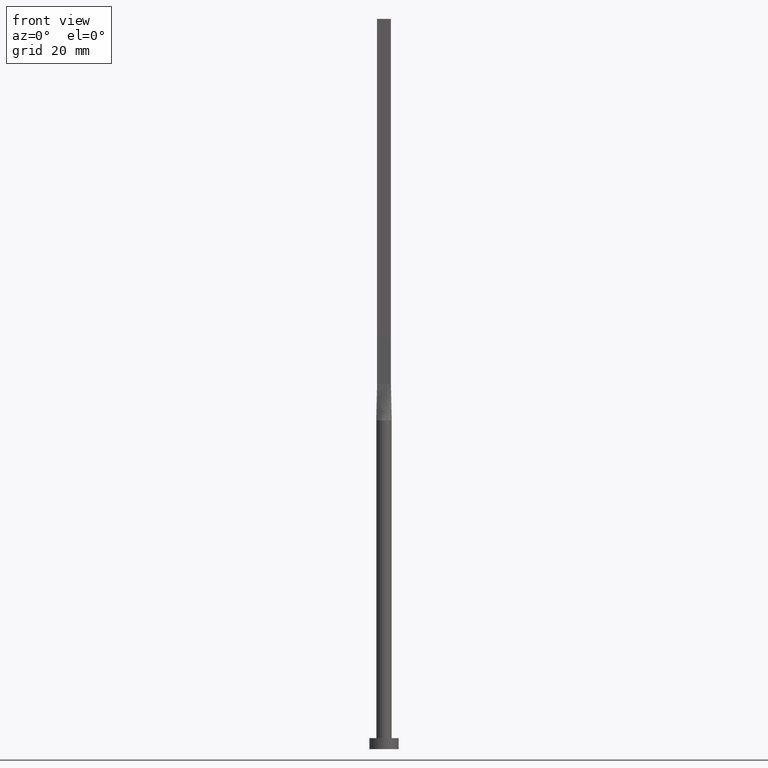
[diagram: clean part render]
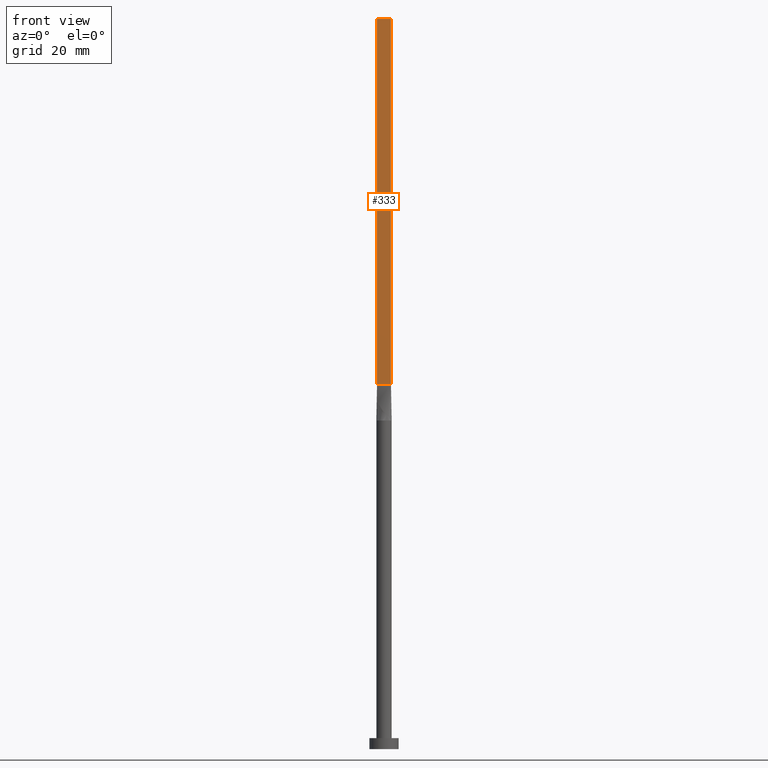
[diagram: same view with one face highlighted and labeled with its STEP entity id]
A machine part, front view. The second image highlights one B-rep face of the part: STEP entity #333.
In plain terms, the highlighted planar face has unit normal (0, 1, -0).
Its self-contained STEP definition (entity closure, byte-faithful):
#11 = EDGE_CURVE ( 'NONE', #233, #367, #536, .T. ) ;
#39 = ORIENTED_EDGE ( 'NONE', *, *, #90, .T. ) ;
#46 = CARTESIAN_POINT ( 'NONE',  ( 1.899999999999999023, -0.5999999999999997558, 99.99999999999998579 ) ) ;
#77 = PLANE ( 'NONE',  #143 ) ;
#80 = VERTEX_POINT ( 'NONE', #46 ) ;
#85 = CARTESIAN_POINT ( 'NONE',  ( -1.899999999999999911, -0.5999999999999995337, 200.0000000000000000 ) ) ;
#89 = ORIENTED_EDGE ( 'NONE', *, *, #11, .F. ) ;
#90 = EDGE_CURVE ( 'NONE', #464, #80, #528, .T. ) ;
#109 = CARTESIAN_POINT ( 'NONE',  ( -1.899999999999999911, -0.5999999999999995337, 200.0000000000000000 ) ) ;
#121 = VECTOR ( 'NONE', #453, 1000.000000000000000 ) ;
#129 = DIRECTION ( 'NONE',  ( 1.000000000000000000, -5.706327223607920020E-17, 0.000000000000000000 ) ) ;
#138 = ORIENTED_EDGE ( 'NONE', *, *, #140, .F. ) ;
#140 = EDGE_CURVE ( 'NONE', #367, #80, #259, .T. ) ;
#143 = AXIS2_PLACEMENT_3D ( 'NONE', #573, #223, #178 ) ;
#169 = LINE ( 'NONE', #85, #520 ) ;
#178 = DIRECTION ( 'NONE',  ( -1.000000000000000000, 5.706327223607920020E-17, 0.000000000000000000 ) ) ;
#210 = EDGE_LOOP ( 'NONE', ( #39, #138, #89, #216 ) ) ;
#216 = ORIENTED_EDGE ( 'NONE', *, *, #363, .T. ) ;
#223 = DIRECTION ( 'NONE',  ( 5.706327223607920020E-17, 1.000000000000000000, -0.000000000000000000 ) ) ;
#228 = CARTESIAN_POINT ( 'NONE',  ( -1.899999999999999911, -0.5999999999999995337, 99.99999999999998579 ) ) ;
#233 = VERTEX_POINT ( 'NONE', #109 ) ;
#259 = LINE ( 'NONE', #308, #121 ) ;
#281 = VECTOR ( 'NONE', #538, 1000.000000000000000 ) ;
#303 = VECTOR ( 'NONE', #129, 1000.000000000000000 ) ;
#308 = CARTESIAN_POINT ( 'NONE',  ( 1.899999999999999023, -0.5999999999999997558, 200.0000000000000000 ) ) ;
#333 = ADVANCED_FACE ( 'NONE', ( #481 ), #77, .F. ) ;
#363 = EDGE_CURVE ( 'NONE', #233, #464, #169, .T. ) ;
#367 = VERTEX_POINT ( 'NONE', #488 ) ;
#446 = CARTESIAN_POINT ( 'NONE',  ( -1.899999999999999911, -0.5999999999999995337, 200.0000000000000000 ) ) ;
#453 = DIRECTION ( 'NONE',  ( -0.000000000000000000, -0.000000000000000000, -1.000000000000000000 ) ) ;
#464 = VERTEX_POINT ( 'NONE', #512 ) ;
#481 = FACE_OUTER_BOUND ( 'NONE', #210, .T. ) ;
#488 = CARTESIAN_POINT ( 'NONE',  ( 1.899999999999999023, -0.5999999999999997558, 200.0000000000000000 ) ) ;
#512 = CARTESIAN_POINT ( 'NONE',  ( -1.899999999999999911, -0.5999999999999995337, 99.99999999999998579 ) ) ;
#520 = VECTOR ( 'NONE', #563, 1000.000000000000000 ) ;
#528 = LINE ( 'NONE', #228, #281 ) ;
#536 = LINE ( 'NONE', #446, #303 ) ;
#538 = DIRECTION ( 'NONE',  ( 1.000000000000000000, -5.706327223607918787E-17, 0.000000000000000000 ) ) ;
#563 = DIRECTION ( 'NONE',  ( -0.000000000000000000, -0.000000000000000000, -1.000000000000000000 ) ) ;
#573 = CARTESIAN_POINT ( 'NONE',  ( -1.899999999999999911, -0.5999999999999995337, 200.0000000000000000 ) ) ;